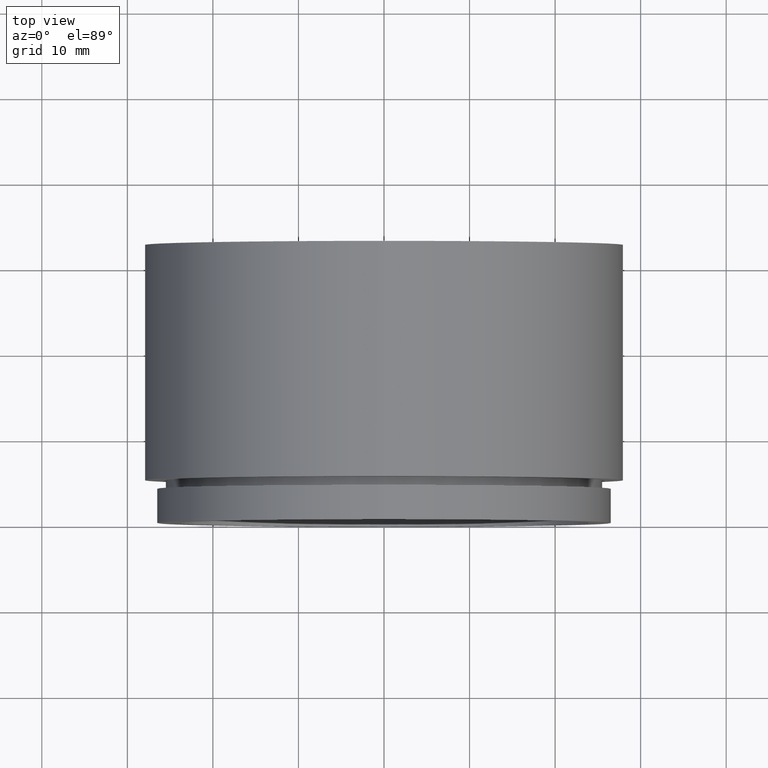
[diagram: clean part render]
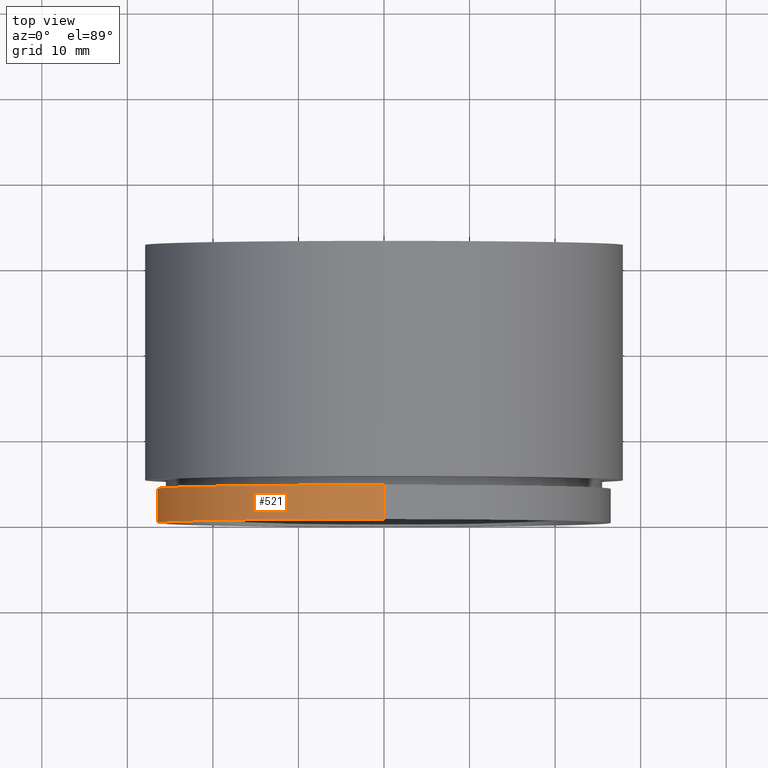
[diagram: same view with one face highlighted and labeled with its STEP entity id]
A machine part, top view. The second image highlights one B-rep face of the part: STEP entity #521.
In plain terms, the highlighted cylindrical surface (partial cylindrical patch) has radius 26.5 mm, axis along (-0, -1, -0).
Its self-contained STEP definition (entity closure, byte-faithful):
#7 = VECTOR ( 'NONE', #216, 1000.000000000000000 ) ;
#11 = DIRECTION ( 'NONE',  ( -0.0000000000000000000, -1.000000000000000000, -0.0000000000000000000 ) ) ;
#30 = EDGE_CURVE ( 'NONE', #603, #176, #219, .T. ) ;
#32 = CARTESIAN_POINT ( 'NONE',  ( 0.0000000000000000000, 4.000000000000000000, 0.0000000000000000000 ) ) ;
#47 = CIRCLE ( 'NONE', #257, 26.50000000000000000 ) ;
#49 = DIRECTION ( 'NONE',  ( 0.0000000000000000000, 0.0000000000000000000, -1.000000000000000000 ) ) ;
#68 = VECTOR ( 'NONE', #92, 1000.000000000000000 ) ;
#92 = DIRECTION ( 'NONE',  ( -0.0000000000000000000, -1.000000000000000000, -0.0000000000000000000 ) ) ;
#94 = DIRECTION ( 'NONE',  ( -0.0000000000000000000, -1.000000000000000000, -0.0000000000000000000 ) ) ;
#176 = VERTEX_POINT ( 'NONE', #297 ) ;
#187 = LINE ( 'NONE', #643, #68 ) ;
#195 = ORIENTED_EDGE ( 'NONE', *, *, #593, .F. ) ;
#204 = DIRECTION ( 'NONE',  ( -0.0000000000000000000, -1.000000000000000000, -0.0000000000000000000 ) ) ;
#211 = CIRCLE ( 'NONE', #423, 26.50000000000000000 ) ;
#216 = DIRECTION ( 'NONE',  ( -0.0000000000000000000, -1.000000000000000000, -0.0000000000000000000 ) ) ;
#219 = LINE ( 'NONE', #389, #7 ) ;
#225 = ORIENTED_EDGE ( 'NONE', *, *, #255, .T. ) ;
#227 = CARTESIAN_POINT ( 'NONE',  ( 0.0000000000000000000, 0.0000000000000000000, 0.0000000000000000000 ) ) ;
#230 = EDGE_CURVE ( 'NONE', #541, #425, #187, .T. ) ;
#237 = CARTESIAN_POINT ( 'NONE',  ( 0.0000000000000000000, 4.000000000000000000, -26.50000000000000000 ) ) ;
#252 = CARTESIAN_POINT ( 'NONE',  ( 3.245314017740485800E-015, 0.0000000000000000000, 26.50000000000000000 ) ) ;
#255 = EDGE_CURVE ( 'NONE', #541, #603, #211, .T. ) ;
#257 = AXIS2_PLACEMENT_3D ( 'NONE', #227, #11, #269 ) ;
#269 = DIRECTION ( 'NONE',  ( 0.0000000000000000000, 0.0000000000000000000, -1.000000000000000000 ) ) ;
#292 = ORIENTED_EDGE ( 'NONE', *, *, #30, .T. ) ;
#297 = CARTESIAN_POINT ( 'NONE',  ( 0.0000000000000000000, 0.0000000000000000000, -26.50000000000000000 ) ) ;
#305 = EDGE_LOOP ( 'NONE', ( #564, #225, #292, #195 ) ) ;
#389 = CARTESIAN_POINT ( 'NONE',  ( 0.0000000000000000000, 0.0000000000000000000, -26.50000000000000000 ) ) ;
#423 = AXIS2_PLACEMENT_3D ( 'NONE', #32, #204, #49 ) ;
#425 = VERTEX_POINT ( 'NONE', #252 ) ;
#521 = ADVANCED_FACE ( 'NONE', ( #580 ), #570, .T. ) ;
#528 = AXIS2_PLACEMENT_3D ( 'NONE', #609, #94, #594 ) ;
#541 = VERTEX_POINT ( 'NONE', #632 ) ;
#564 = ORIENTED_EDGE ( 'NONE', *, *, #230, .F. ) ;
#570 = CYLINDRICAL_SURFACE ( 'NONE', #528, 26.50000000000000000 ) ;
#580 = FACE_OUTER_BOUND ( 'NONE', #305, .T. ) ;
#593 = EDGE_CURVE ( 'NONE', #425, #176, #47, .T. ) ;
#594 = DIRECTION ( 'NONE',  ( 0.0000000000000000000, 0.0000000000000000000, -1.000000000000000000 ) ) ;
#603 = VERTEX_POINT ( 'NONE', #237 ) ;
#609 = CARTESIAN_POINT ( 'NONE',  ( 0.0000000000000000000, 0.0000000000000000000, 0.0000000000000000000 ) ) ;
#632 = CARTESIAN_POINT ( 'NONE',  ( 3.245314017740485800E-015, 4.000000000000000000, 26.50000000000000000 ) ) ;
#643 = CARTESIAN_POINT ( 'NONE',  ( 3.245314017740485800E-015, 0.0000000000000000000, 26.50000000000000000 ) ) ;